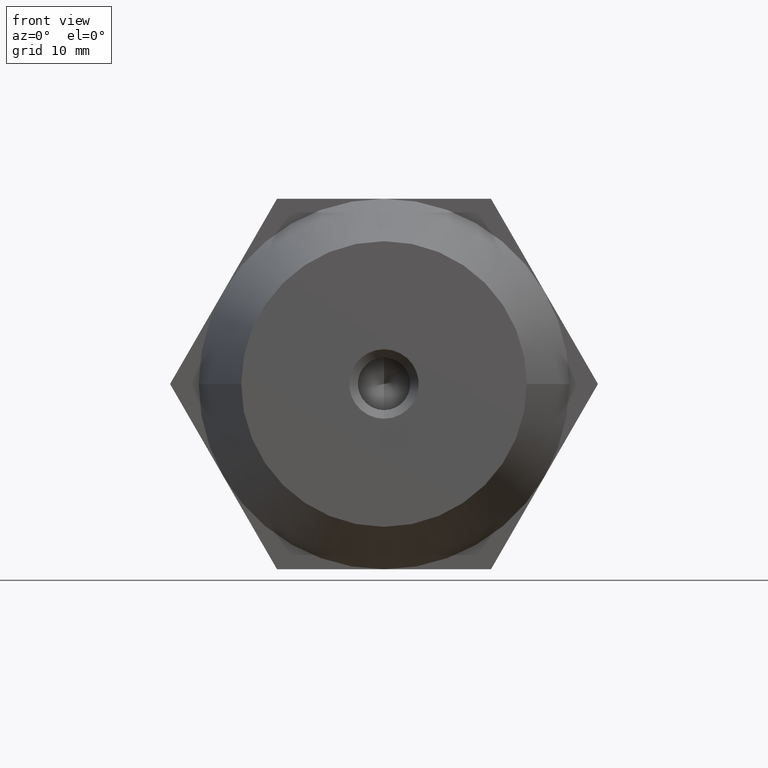
[diagram: clean part render]
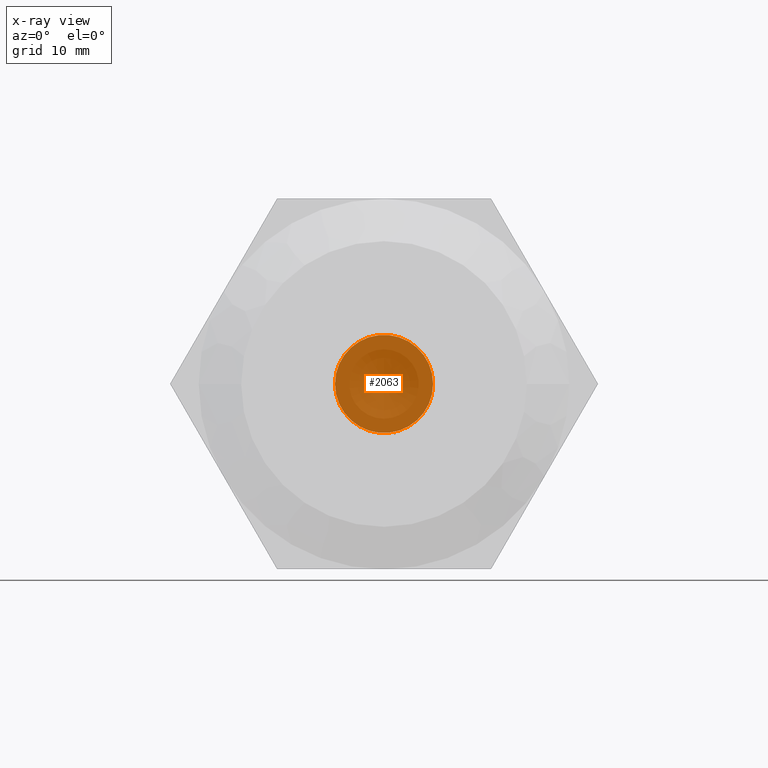
[diagram: x-ray — body ghosted, one internal face saturated and labeled with its STEP entity id]
A machine part, front view, then the same camera in x-ray: the body is ghosted and one INTERNAL B-rep face — a face not visible from any outside direction — is saturated and labeled: STEP entity #2063.
In plain terms, the highlighted planar face has unit normal (0, 1, 0).
Its self-contained STEP definition (entity closure, byte-faithful):
#12 = CARTESIAN_POINT ( 'NONE',  ( 6.349999999999999600, 16.00000000000000000, 0.0000000000000000000 ) ) ;
#36 = ORIENTED_EDGE ( 'NONE', *, *, #305, .F. ) ;
#137 = CARTESIAN_POINT ( 'NONE',  ( -3.174999999999999800, 16.00000000000000000, 5.499261314031190100 ) ) ;
#164 = FACE_OUTER_BOUND ( 'NONE', #526, .T. ) ;
#169 = DIRECTION ( 'NONE',  ( 0.0000000000000000000, 0.0000000000000000000, 1.000000000000000000 ) ) ;
#184 = DIRECTION ( 'NONE',  ( -0.0000000000000000000, -1.000000000000000000, -0.0000000000000000000 ) ) ;
#262 = DIRECTION ( 'NONE',  ( 0.0000000000000000000, 0.0000000000000000000, 1.000000000000000000 ) ) ;
#284 = EDGE_CURVE ( 'NONE', #367, #1588, #2758, .T. ) ;
#305 = EDGE_CURVE ( 'NONE', #1506, #555, #3290, .T. ) ;
#334 = EDGE_CURVE ( 'NONE', #3259, #1668, #1187, .T. ) ;
#357 = DIRECTION ( 'NONE',  ( -0.0000000000000000000, -1.000000000000000000, -0.0000000000000000000 ) ) ;
#367 = VERTEX_POINT ( 'NONE', #1439 ) ;
#465 = DIRECTION ( 'NONE',  ( -0.0000000000000000000, -1.000000000000000000, -0.0000000000000000000 ) ) ;
#479 = CARTESIAN_POINT ( 'NONE',  ( 3.469446951953615000E-015, 16.00000000000000000, 0.0000000000000000000 ) ) ;
#513 = EDGE_CURVE ( 'NONE', #1668, #1506, #724, .T. ) ;
#526 = EDGE_LOOP ( 'NONE', ( #36, #1561, #2402, #2576, #2887, #1207 ) ) ;
#527 = DIRECTION ( 'NONE',  ( -0.0000000000000000000, -1.000000000000000000, -0.0000000000000000000 ) ) ;
#555 = VERTEX_POINT ( 'NONE', #137 ) ;
#575 = CIRCLE ( 'NONE', #1001, 6.349999999999999600 ) ;
#724 = CIRCLE ( 'NONE', #2968, 6.349999999999999600 ) ;
#770 = AXIS2_PLACEMENT_3D ( 'NONE', #2190, #3380, #262 ) ;
#957 = DIRECTION ( 'NONE',  ( 0.0000000000000000000, 0.0000000000000000000, 1.000000000000000000 ) ) ;
#973 = DIRECTION ( 'NONE',  ( -0.0000000000000000000, -1.000000000000000000, -0.0000000000000000000 ) ) ;
#1001 = AXIS2_PLACEMENT_3D ( 'NONE', #2420, #1009, #2745 ) ;
#1009 = DIRECTION ( 'NONE',  ( -0.0000000000000000000, -1.000000000000000000, -0.0000000000000000000 ) ) ;
#1149 = AXIS2_PLACEMENT_3D ( 'NONE', #479, #184, #3046 ) ;
#1175 = CARTESIAN_POINT ( 'NONE',  ( 3.469446951953615000E-015, 16.00000000000000000, 0.0000000000000000000 ) ) ;
#1187 = CIRCLE ( 'NONE', #2029, 6.349999999999999600 ) ;
#1207 = ORIENTED_EDGE ( 'NONE', *, *, #2509, .F. ) ;
#1220 = CIRCLE ( 'NONE', #1149, 6.349999999999999600 ) ;
#1439 = CARTESIAN_POINT ( 'NONE',  ( -6.349999999999999600, 16.00000000000000000, 0.0000000000000000000 ) ) ;
#1506 = VERTEX_POINT ( 'NONE', #3111 ) ;
#1520 = DIRECTION ( 'NONE',  ( 0.0000000000000000000, 0.0000000000000000000, 1.000000000000000000 ) ) ;
#1524 = AXIS2_PLACEMENT_3D ( 'NONE', #3582, #357, #169 ) ;
#1561 = ORIENTED_EDGE ( 'NONE', *, *, #513, .F. ) ;
#1588 = VERTEX_POINT ( 'NONE', #3659 ) ;
#1619 = CARTESIAN_POINT ( 'NONE',  ( 3.469446951953615000E-015, 16.00000000000000000, 0.0000000000000000000 ) ) ;
#1668 = VERTEX_POINT ( 'NONE', #12 ) ;
#1899 = PLANE ( 'NONE',  #770 ) ;
#2004 = EDGE_CURVE ( 'NONE', #1588, #3259, #1220, .T. ) ;
#2029 = AXIS2_PLACEMENT_3D ( 'NONE', #3078, #527, #2807 ) ;
#2063 = ADVANCED_FACE ( 'NONE', ( #164 ), #1899, .T. ) ;
#2190 = CARTESIAN_POINT ( 'NONE',  ( 0.0000000000000000000, 16.00000000000000000, 0.0000000000000000000 ) ) ;
#2402 = ORIENTED_EDGE ( 'NONE', *, *, #334, .F. ) ;
#2408 = AXIS2_PLACEMENT_3D ( 'NONE', #1619, #465, #1520 ) ;
#2420 = CARTESIAN_POINT ( 'NONE',  ( 3.469446951953615000E-015, 16.00000000000000000, 0.0000000000000000000 ) ) ;
#2509 = EDGE_CURVE ( 'NONE', #555, #367, #575, .T. ) ;
#2576 = ORIENTED_EDGE ( 'NONE', *, *, #2004, .F. ) ;
#2745 = DIRECTION ( 'NONE',  ( 0.0000000000000000000, 0.0000000000000000000, 1.000000000000000000 ) ) ;
#2758 = CIRCLE ( 'NONE', #2408, 6.349999999999999600 ) ;
#2807 = DIRECTION ( 'NONE',  ( 0.0000000000000000000, 0.0000000000000000000, 1.000000000000000000 ) ) ;
#2887 = ORIENTED_EDGE ( 'NONE', *, *, #284, .F. ) ;
#2968 = AXIS2_PLACEMENT_3D ( 'NONE', #1175, #973, #957 ) ;
#3046 = DIRECTION ( 'NONE',  ( 1.776356839400250500E-015, 0.0000000000000000000, 1.000000000000000000 ) ) ;
#3078 = CARTESIAN_POINT ( 'NONE',  ( 3.469446951953615000E-015, 16.00000000000000000, 0.0000000000000000000 ) ) ;
#3111 = CARTESIAN_POINT ( 'NONE',  ( 3.174999999999955000, 15.99999999999925000, 5.499261314031209700 ) ) ;
#3224 = CARTESIAN_POINT ( 'NONE',  ( 3.175000000000045100, 15.99999999999925000, -5.499261314031159900 ) ) ;
#3259 = VERTEX_POINT ( 'NONE', #3224 ) ;
#3290 = CIRCLE ( 'NONE', #1524, 6.349999999999999600 ) ;
#3380 = DIRECTION ( 'NONE',  ( 0.0000000000000000000, 1.000000000000000000, 0.0000000000000000000 ) ) ;
#3582 = CARTESIAN_POINT ( 'NONE',  ( 3.469446951953615000E-015, 16.00000000000000000, 0.0000000000000000000 ) ) ;
#3659 = CARTESIAN_POINT ( 'NONE',  ( -3.174999999999950100, 15.99999999999925000, -5.499261314031209700 ) ) ;